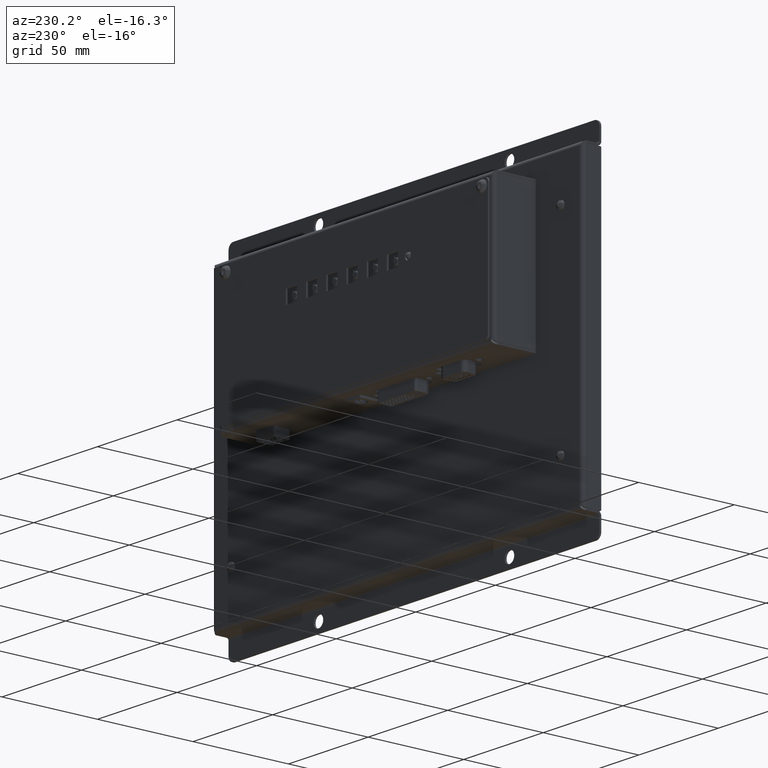
[diagram: clean part render]
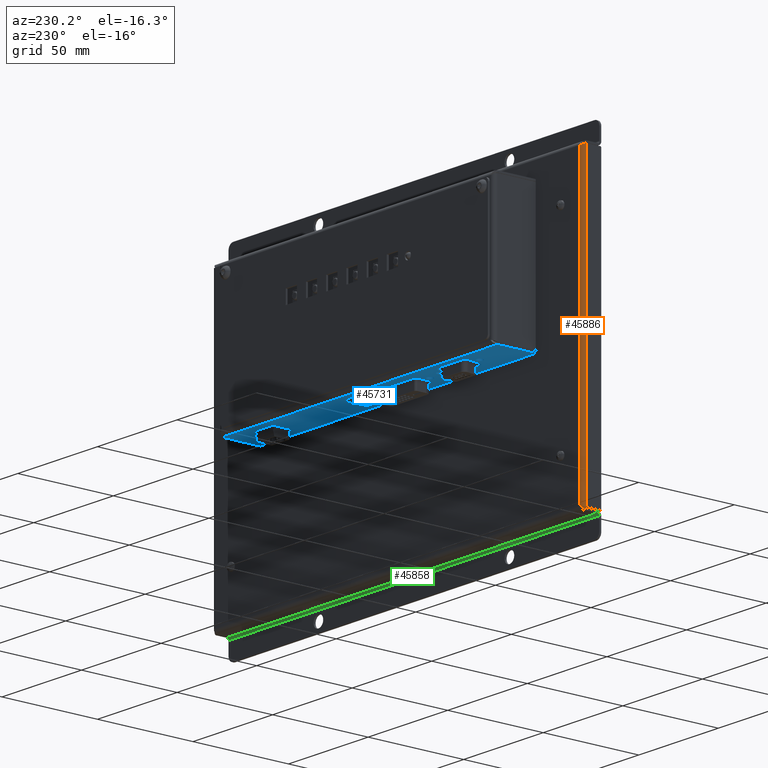
[diagram: same view with three faces highlighted in distinct colors, each labeled with its STEP entity id]
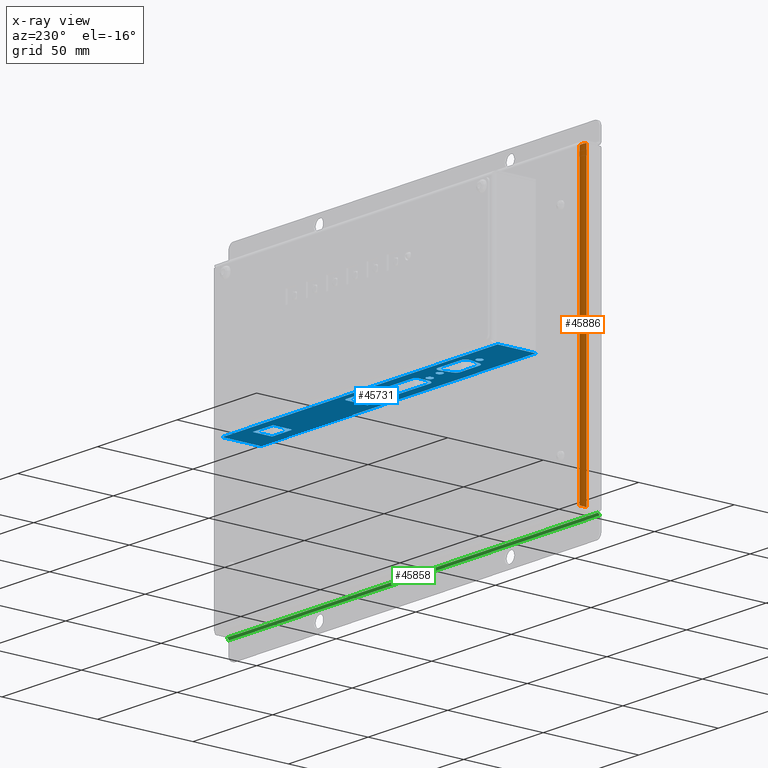
[diagram: x-ray of the same camera — body ghosted, the three highlighted faces saturated]
A machine part, auxiliary view with three faces highlighted in distinct colors.
The next image is the same camera in x-ray (body ghosted, the three faces saturated) — at least one of them is partly hidden behind the body in this view.
Their STEP definitions:

[orange] entity #45886 — the highlighted cylindrical surface (edge-blend (fillet) strip) has radius 2 mm, axis along (0, -0, 1).
#855=CYLINDRICAL_SURFACE('',#49234,2.00000000000001);
#2191=B_SPLINE_CURVE_WITH_KNOTS('',3,(#79556,#79557,#79558,#79559,#79560,
#79561,#79562),.UNSPECIFIED.,.F.,.F.,(4,3,4),(-0.763258696678563,-0.327110870012878,
0.),.UNSPECIFIED.);
#2196=B_SPLINE_CURVE_WITH_KNOTS('',3,(#79666,#79667,#79668,#79669),
 .UNSPECIFIED.,.F.,.F.,(4,4),(-1.,-0.763258696678563),.UNSPECIFIED.);
#2211=B_SPLINE_CURVE_WITH_KNOTS('',3,(#79989,#79990,#79991,#79992),
 .UNSPECIFIED.,.F.,.F.,(4,4),(-1.,-0.763258696678558),.UNSPECIFIED.);
#2213=B_SPLINE_CURVE_WITH_KNOTS('',3,(#80043,#80044,#80045,#80046,#80047,
#80048,#80049),.UNSPECIFIED.,.F.,.F.,(4,3,4),(-0.763258696678558,-0.327110870012873,
0.),.UNSPECIFIED.);
#5913=FACE_OUTER_BOUND('',#8689,.T.);
#8689=EDGE_LOOP('',(#37848,#37849,#37850,#37851,#37852,#37853));
#12446=LINE('',#78990,#16313);
#12609=LINE('',#80052,#16476);
#16313=VECTOR('',#58653,10.);
#16476=VECTOR('',#59242,10.);
#20192=VERTEX_POINT('',#78987);
#20193=VERTEX_POINT('',#78989);
#20379=VERTEX_POINT('',#79542);
#20381=VERTEX_POINT('',#79643);
#20386=VERTEX_POINT('',#79976);
#20387=VERTEX_POINT('',#79987);
#26047=EDGE_CURVE('',#20192,#20193,#12446,.T.);
#26314=EDGE_CURVE('',#20379,#20193,#2191,.T.);
#26323=EDGE_CURVE('',#20381,#20379,#2196,.T.);
#26347=EDGE_CURVE('',#20387,#20386,#2211,.T.);
#26351=EDGE_CURVE('',#20386,#20192,#2213,.T.);
#26352=EDGE_CURVE('',#20381,#20387,#12609,.T.);
#37848=ORIENTED_EDGE('',*,*,#26352,.F.);
#37849=ORIENTED_EDGE('',*,*,#26323,.T.);
#37850=ORIENTED_EDGE('',*,*,#26314,.T.);
#37851=ORIENTED_EDGE('',*,*,#26047,.F.);
#37852=ORIENTED_EDGE('',*,*,#26351,.F.);
#37853=ORIENTED_EDGE('',*,*,#26347,.F.);
#45886=ADVANCED_FACE('',(#5913),#855,.T.);
#49234=AXIS2_PLACEMENT_3D('',#80051,#59240,#59241);
#58653=DIRECTION('',(2.3489649007654E-15,-8.20186098913772E-15,1.));
#59240=DIRECTION('center_axis',(2.23436123370732E-15,-8.20186098913772E-15,
1.));
#59241=DIRECTION('ref_axis',(5.65542498844263E-15,1.,8.2018609891377E-15));
#59242=DIRECTION('',(-2.13833356226729E-15,8.20186098913772E-15,-1.));
#78987=CARTESIAN_POINT('',(-114.5,9.70000000000189,-75.3999999999997));
#78989=CARTESIAN_POINT('',(-114.5,9.70000000000065,75.6000000000003));
#78990=CARTESIAN_POINT('',(-114.5,9.70000000000158,-37.6499999999997));
#79542=CARTESIAN_POINT('',(-116.363297267953,8.42672091701272,76.2869328269985));
#79556=CARTESIAN_POINT('Ctrl Pts',(-116.363297267955,8.42672091701752,76.286932827011));
#79557=CARTESIAN_POINT('Ctrl Pts',(-116.197338578898,8.85223553297524,76.1560884790113));
#79558=CARTESIAN_POINT('Ctrl Pts',(-115.880187355499,9.21691938856584,76.025244131011));
#79559=CARTESIAN_POINT('Ctrl Pts',(-115.483114631716,9.44164274536488,75.8943997830113));
#79560=CARTESIAN_POINT('Ctrl Pts',(-115.185310088866,9.61018526297118,75.7962665220075));
#79561=CARTESIAN_POINT('Ctrl Pts',(-114.842549702047,9.70000000000066,75.698133261004));
#79562=CARTESIAN_POINT('Ctrl Pts',(-114.5,9.70000000000065,75.6000000000002));
#79643=CARTESIAN_POINT('',(-116.5,7.70000000000067,76.5000000000003));
#79666=CARTESIAN_POINT('Ctrl Pts',(-116.5,7.70000000000067,76.5000000000003));
#79667=CARTESIAN_POINT('Ctrl Pts',(-116.5,7.9479149131059,76.4289776090032));
#79668=CARTESIAN_POINT('Ctrl Pts',(-116.452183712013,8.1960704959454,76.3579552180067));
#79669=CARTESIAN_POINT('Ctrl Pts',(-116.362211487759,8.4274026425503,76.2869328270104));
#79976=CARTESIAN_POINT('',(-116.363297267953,8.42672091701397,-76.0869328269979));
#79987=CARTESIAN_POINT('',(-116.5,7.70000000000192,-76.2999999999997));
#79989=CARTESIAN_POINT('Ctrl Pts',(-116.5,7.70000000000192,-76.2999999999997));
#79990=CARTESIAN_POINT('Ctrl Pts',(-116.5,7.94791491310718,-76.2289776090034));
#79991=CARTESIAN_POINT('Ctrl Pts',(-116.452183727048,8.19607051399547,-76.1579552180069));
#79992=CARTESIAN_POINT('Ctrl Pts',(-116.36221151744,8.42740267818207,-76.0869328270103));
#80043=CARTESIAN_POINT('Ctrl Pts',(-116.363297267956,8.42672091701878,-76.0869328270104));
#80044=CARTESIAN_POINT('Ctrl Pts',(-116.197338578898,8.85223553297652,-75.9560884790104));
#80045=CARTESIAN_POINT('Ctrl Pts',(-115.880187364608,9.21691940404167,-75.8252441310103));
#80046=CARTESIAN_POINT('Ctrl Pts',(-115.483114639524,9.44164275863004,-75.694399783011));
#80047=CARTESIAN_POINT('Ctrl Pts',(-115.185310095698,9.61018527457834,-75.5962665220075));
#80048=CARTESIAN_POINT('Ctrl Pts',(-114.842549702048,9.7000000000019,-75.4981332610045));
#80049=CARTESIAN_POINT('Ctrl Pts',(-114.5,9.70000000000189,-75.3999999999997));
#80051=CARTESIAN_POINT('Origin',(-114.5,7.70000000000127,0.100000000000251));
#80052=CARTESIAN_POINT('',(-116.5,7.70000000000129,0.100000000000263));

[blue] entity #45731 — the highlighted planar face has unit normal (-0, 0, -1).
#1488=FACE_BOUND('',#8463,.T.);
#1489=FACE_BOUND('',#8464,.T.);
#1490=FACE_BOUND('',#8465,.T.);
#1491=FACE_BOUND('',#8466,.T.);
#1492=FACE_BOUND('',#8467,.T.);
#1493=FACE_BOUND('',#8468,.T.);
#1494=FACE_BOUND('',#8469,.T.);
#1495=FACE_BOUND('',#8470,.T.);
#3359=CIRCLE('',#48850,1.7);
#3360=CIRCLE('',#48851,1.7);
#3363=CIRCLE('',#48855,1.7);
#3364=CIRCLE('',#48856,1.7);
#3367=CIRCLE('',#48860,1.7);
#3369=CIRCLE('',#48863,1.7);
#3371=CIRCLE('',#48867,2.4);
#3373=CIRCLE('',#48871,2.4);
#3375=CIRCLE('',#48875,2.4);
#3377=CIRCLE('',#48879,2.4);
#3379=CIRCLE('',#48887,1.3);
#3381=CIRCLE('',#48893,1.3);
#3383=CIRCLE('',#48897,1.8);
#3385=CIRCLE('',#48901,1.8);
#3387=CIRCLE('',#48905,1.79999999999992);
#3389=CIRCLE('',#48909,1.8);
#3391=CIRCLE('',#48913,1.80000000000001);
#3393=CIRCLE('',#48917,1.80000000000001);
#5758=FACE_OUTER_BOUND('',#8462,.T.);
#8462=EDGE_LOOP('',(#36902,#36903,#36904,#36905));
#8463=EDGE_LOOP('',(#36906,#36907));
#8464=EDGE_LOOP('',(#36908,#36909));
#8465=EDGE_LOOP('',(#36910));
#8466=EDGE_LOOP('',(#36911));
#8467=EDGE_LOOP('',(#36912,#36913,#36914,#36915,#36916,#36917,#36918,#36919));
#8468=EDGE_LOOP('',(#36920,#36921,#36922,#36923));
#8469=EDGE_LOOP('',(#36924,#36925,#36926,#36927,#36928,#36929));
#8470=EDGE_LOOP('',(#36930,#36931,#36932,#36933,#36934,#36935,#36936,#36937,
#36938,#36939,#36940,#36941));
#12213=LINE('',#77879,#16080);
#12218=LINE('',#77893,#16085);
#12222=LINE('',#77905,#16089);
#12226=LINE('',#77917,#16093);
#12229=LINE('',#77927,#16096);
#12233=LINE('',#77935,#16100);
#12236=LINE('',#77941,#16103);
#12239=LINE('',#77946,#16106);
#12241=LINE('',#77951,#16108);
#12246=LINE('',#77965,#16113);
#12249=LINE('',#77971,#16116);
#12252=LINE('',#77977,#16119);
#12255=LINE('',#77987,#16122);
#12260=LINE('',#78001,#16127);
#12264=LINE('',#78013,#16131);
#12268=LINE('',#78025,#16135);
#12272=LINE('',#78037,#16139);
#12276=LINE('',#78049,#16143);
#12289=LINE('',#78217,#16156);
#12303=LINE('',#78365,#16170);
#12330=LINE('',#78645,#16197);
#12335=LINE('',#78702,#16202);
#16080=VECTOR('',#58108,10.);
#16085=VECTOR('',#58121,10.);
#16089=VECTOR('',#58133,10.);
#16093=VECTOR('',#58145,10.);
#16096=VECTOR('',#58156,10.);
#16100=VECTOR('',#58162,10.);
#16103=VECTOR('',#58167,10.);
#16106=VECTOR('',#58172,10.);
#16108=VECTOR('',#58176,10.);
#16113=VECTOR('',#58189,10.);
#16116=VECTOR('',#58194,10.);
#16119=VECTOR('',#58199,10.);
#16122=VECTOR('',#58210,10.);
#16127=VECTOR('',#58223,10.);
#16131=VECTOR('',#58235,10.);
#16135=VECTOR('',#58247,10.);
#16139=VECTOR('',#58259,10.);
#16143=VECTOR('',#58271,10.);
#16156=VECTOR('',#58298,10.);
#16170=VECTOR('',#58322,10.);
#16197=VECTOR('',#58375,10.);
#16202=VECTOR('',#58388,10.);
#19982=VERTEX_POINT('',#77845);
#19983=VERTEX_POINT('',#77846);
#19986=VERTEX_POINT('',#77855);
#19987=VERTEX_POINT('',#77856);
#19990=VERTEX_POINT('',#77865);
#19992=VERTEX_POINT('',#77871);
#19994=VERTEX_POINT('',#77877);
#19995=VERTEX_POINT('',#77878);
#19998=VERTEX_POINT('',#77886);
#20000=VERTEX_POINT('',#77892);
#20002=VERTEX_POINT('',#77898);
#20004=VERTEX_POINT('',#77904);
#20006=VERTEX_POINT('',#77910);
#20008=VERTEX_POINT('',#77916);
#20010=VERTEX_POINT('',#77925);
#20011=VERTEX_POINT('',#77926);
#20014=VERTEX_POINT('',#77934);
#20016=VERTEX_POINT('',#77940);
#20018=VERTEX_POINT('',#77949);
#20019=VERTEX_POINT('',#77950);
#20022=VERTEX_POINT('',#77958);
#20024=VERTEX_POINT('',#77964);
#20026=VERTEX_POINT('',#77970);
#20028=VERTEX_POINT('',#77976);
#20030=VERTEX_POINT('',#77985);
#20031=VERTEX_POINT('',#77986);
#20034=VERTEX_POINT('',#77994);
#20036=VERTEX_POINT('',#78000);
#20038=VERTEX_POINT('',#78006);
#20040=VERTEX_POINT('',#78012);
#20042=VERTEX_POINT('',#78018);
#20044=VERTEX_POINT('',#78024);
#20046=VERTEX_POINT('',#78030);
#20048=VERTEX_POINT('',#78036);
#20050=VERTEX_POINT('',#78042);
#20052=VERTEX_POINT('',#78048);
#20064=VERTEX_POINT('',#78215);
#20065=VERTEX_POINT('',#78216);
#20080=VERTEX_POINT('',#78363);
#20092=VERTEX_POINT('',#78643);
#25722=EDGE_CURVE('',#19982,#19983,#3359,.T.);
#25723=EDGE_CURVE('',#19983,#19982,#3360,.T.);
#25727=EDGE_CURVE('',#19986,#19987,#3363,.T.);
#25728=EDGE_CURVE('',#19987,#19986,#3364,.T.);
#25732=EDGE_CURVE('',#19990,#19990,#3367,.T.);
#25735=EDGE_CURVE('',#19992,#19992,#3369,.T.);
#25738=EDGE_CURVE('',#19994,#19995,#12213,.T.);
#25742=EDGE_CURVE('',#19998,#19994,#3371,.T.);
#25745=EDGE_CURVE('',#20000,#19998,#12218,.T.);
#25748=EDGE_CURVE('',#20002,#20000,#3373,.T.);
#25751=EDGE_CURVE('',#20004,#20002,#12222,.T.);
#25754=EDGE_CURVE('',#20006,#20004,#3375,.T.);
#25757=EDGE_CURVE('',#20008,#20006,#12226,.T.);
#25760=EDGE_CURVE('',#19995,#20008,#3377,.T.);
#25762=EDGE_CURVE('',#20010,#20011,#12229,.T.);
#25766=EDGE_CURVE('',#20014,#20010,#12233,.T.);
#25769=EDGE_CURVE('',#20016,#20014,#12236,.T.);
#25772=EDGE_CURVE('',#20011,#20016,#12239,.T.);
#25774=EDGE_CURVE('',#20018,#20019,#12241,.T.);
#25778=EDGE_CURVE('',#20022,#20018,#3379,.T.);
#25781=EDGE_CURVE('',#20024,#20022,#12246,.T.);
#25784=EDGE_CURVE('',#20026,#20024,#12249,.T.);
#25787=EDGE_CURVE('',#20028,#20026,#12252,.T.);
#25790=EDGE_CURVE('',#20019,#20028,#3381,.T.);
#25792=EDGE_CURVE('',#20030,#20031,#12255,.T.);
#25796=EDGE_CURVE('',#20034,#20030,#3383,.T.);
#25799=EDGE_CURVE('',#20036,#20034,#12260,.T.);
#25802=EDGE_CURVE('',#20038,#20036,#3385,.T.);
#25805=EDGE_CURVE('',#20040,#20038,#12264,.T.);
#25808=EDGE_CURVE('',#20042,#20040,#3387,.T.);
#25811=EDGE_CURVE('',#20044,#20042,#12268,.T.);
#25814=EDGE_CURVE('',#20046,#20044,#3389,.T.);
#25817=EDGE_CURVE('',#20048,#20046,#12272,.T.);
#25820=EDGE_CURVE('',#20050,#20048,#3391,.T.);
#25823=EDGE_CURVE('',#20052,#20050,#12276,.T.);
#25826=EDGE_CURVE('',#20031,#20052,#3393,.T.);
#25843=EDGE_CURVE('',#20064,#20065,#12289,.T.);
#25864=EDGE_CURVE('',#20080,#20064,#12303,.T.);
#25902=EDGE_CURVE('',#20092,#20065,#12330,.T.);
#25908=EDGE_CURVE('',#20080,#20092,#12335,.T.);
#36902=ORIENTED_EDGE('',*,*,#25908,.T.);
#36903=ORIENTED_EDGE('',*,*,#25902,.T.);
#36904=ORIENTED_EDGE('',*,*,#25843,.F.);
#36905=ORIENTED_EDGE('',*,*,#25864,.F.);
#36906=ORIENTED_EDGE('',*,*,#25722,.T.);
#36907=ORIENTED_EDGE('',*,*,#25723,.T.);
#36908=ORIENTED_EDGE('',*,*,#25727,.T.);
#36909=ORIENTED_EDGE('',*,*,#25728,.T.);
#36910=ORIENTED_EDGE('',*,*,#25732,.T.);
#36911=ORIENTED_EDGE('',*,*,#25735,.T.);
#36912=ORIENTED_EDGE('',*,*,#25738,.T.);
#36913=ORIENTED_EDGE('',*,*,#25760,.T.);
#36914=ORIENTED_EDGE('',*,*,#25757,.T.);
#36915=ORIENTED_EDGE('',*,*,#25754,.T.);
#36916=ORIENTED_EDGE('',*,*,#25751,.T.);
#36917=ORIENTED_EDGE('',*,*,#25748,.T.);
#36918=ORIENTED_EDGE('',*,*,#25745,.T.);
#36919=ORIENTED_EDGE('',*,*,#25742,.T.);
#36920=ORIENTED_EDGE('',*,*,#25762,.T.);
#36921=ORIENTED_EDGE('',*,*,#25772,.T.);
#36922=ORIENTED_EDGE('',*,*,#25769,.T.);
#36923=ORIENTED_EDGE('',*,*,#25766,.T.);
#36924=ORIENTED_EDGE('',*,*,#25774,.T.);
#36925=ORIENTED_EDGE('',*,*,#25790,.T.);
#36926=ORIENTED_EDGE('',*,*,#25787,.T.);
#36927=ORIENTED_EDGE('',*,*,#25784,.T.);
#36928=ORIENTED_EDGE('',*,*,#25781,.T.);
#36929=ORIENTED_EDGE('',*,*,#25778,.T.);
#36930=ORIENTED_EDGE('',*,*,#25792,.T.);
#36931=ORIENTED_EDGE('',*,*,#25826,.T.);
#36932=ORIENTED_EDGE('',*,*,#25823,.T.);
#36933=ORIENTED_EDGE('',*,*,#25820,.T.);
#36934=ORIENTED_EDGE('',*,*,#25817,.T.);
#36935=ORIENTED_EDGE('',*,*,#25814,.T.);
#36936=ORIENTED_EDGE('',*,*,#25811,.T.);
#36937=ORIENTED_EDGE('',*,*,#25808,.T.);
#36938=ORIENTED_EDGE('',*,*,#25805,.T.);
#36939=ORIENTED_EDGE('',*,*,#25802,.T.);
#36940=ORIENTED_EDGE('',*,*,#25799,.T.);
#36941=ORIENTED_EDGE('',*,*,#25796,.T.);
#41119=PLANE('',#48945);
#45731=ADVANCED_FACE('',(#5758,#1488,#1489,#1490,#1491,#1492,#1493,#1494,
#1495),#41119,.T.);
#48850=AXIS2_PLACEMENT_3D('',#77847,#58072,#58073);
#48851=AXIS2_PLACEMENT_3D('',#77848,#58074,#58075);
#48855=AXIS2_PLACEMENT_3D('',#77857,#58083,#58084);
#48856=AXIS2_PLACEMENT_3D('',#77858,#58085,#58086);
#48860=AXIS2_PLACEMENT_3D('',#77866,#58094,#58095);
#48863=AXIS2_PLACEMENT_3D('',#77872,#58101,#58102);
#48867=AXIS2_PLACEMENT_3D('',#77887,#58114,#58115);
#48871=AXIS2_PLACEMENT_3D('',#77899,#58126,#58127);
#48875=AXIS2_PLACEMENT_3D('',#77911,#58138,#58139);
#48879=AXIS2_PLACEMENT_3D('',#77922,#58150,#58151);
#48887=AXIS2_PLACEMENT_3D('',#77959,#58182,#58183);
#48893=AXIS2_PLACEMENT_3D('',#77982,#58204,#58205);
#48897=AXIS2_PLACEMENT_3D('',#77995,#58216,#58217);
#48901=AXIS2_PLACEMENT_3D('',#78007,#58228,#58229);
#48905=AXIS2_PLACEMENT_3D('',#78019,#58240,#58241);
#48909=AXIS2_PLACEMENT_3D('',#78031,#58252,#58253);
#48913=AXIS2_PLACEMENT_3D('',#78043,#58264,#58265);
#48917=AXIS2_PLACEMENT_3D('',#78054,#58276,#58277);
#48945=AXIS2_PLACEMENT_3D('',#78703,#58389,#58390);
#58072=DIRECTION('center_axis',(7.40398292433168E-15,-7.51784568580419E-15,
1.));
#58073=DIRECTION('ref_axis',(-1.,4.31251229418885E-15,7.40398292433171E-15));
#58074=DIRECTION('center_axis',(7.40398292433168E-15,-7.51784568580419E-15,
1.));
#58075=DIRECTION('ref_axis',(-1.,4.31251229418885E-15,7.40398292433171E-15));
#58083=DIRECTION('center_axis',(7.40398292433168E-15,-7.51784568580419E-15,
1.));
#58084=DIRECTION('ref_axis',(-1.,4.31251229418885E-15,7.40398292433171E-15));
#58085=DIRECTION('center_axis',(7.40398292433168E-15,-7.51784568580419E-15,
1.));
#58086=DIRECTION('ref_axis',(-1.,4.31251229418885E-15,7.40398292433171E-15));
#58094=DIRECTION('center_axis',(7.40398292433168E-15,-7.51784568580419E-15,
1.));
#58095=DIRECTION('ref_axis',(1.,-4.31251229418885E-15,-7.29971638691036E-15));
#58101=DIRECTION('center_axis',(7.40398292433168E-15,-7.51784568580419E-15,
1.));
#58102=DIRECTION('ref_axis',(1.,-4.31251229418885E-15,-7.29971638691036E-15));
#58108=DIRECTION('',(0.195316901016822,0.980740183829125,5.92693035993267E-15));
#58114=DIRECTION('center_axis',(7.40398292433168E-15,-7.51784568580419E-15,
1.));
#58115=DIRECTION('ref_axis',(-0.980740183829125,0.195316901016822,8.5439670894965E-15));
#58121=DIRECTION('',(1.,-3.94526718198739E-15,-7.40398292433171E-15));
#58126=DIRECTION('center_axis',(7.40398292433168E-15,-7.51784568580419E-15,
1.));
#58127=DIRECTION('ref_axis',(4.3125122941889E-15,1.,7.09023075365257E-15));
#58133=DIRECTION('',(0.195316901016813,-0.980740183829126,-8.81917635985647E-15));
#58138=DIRECTION('center_axis',(7.40398292433168E-15,-7.51784568580419E-15,
1.));
#58139=DIRECTION('ref_axis',(0.980740183829126,0.195316901016815,-5.77428329290138E-15));
#58145=DIRECTION('',(-1.,4.00502339965916E-15,7.40398292433171E-15));
#58150=DIRECTION('center_axis',(7.40398292433168E-15,-7.51784568580419E-15,
1.));
#58151=DIRECTION('ref_axis',(-4.3125122941889E-15,-1.,-7.09023075365257E-15));
#58156=DIRECTION('',(-1.,-1.67916752126095E-15,7.40398292433167E-15));
#58162=DIRECTION('',(4.31251229418891E-15,1.,7.51784568580416E-15));
#58167=DIRECTION('',(1.,1.85539339818594E-15,-7.40398292433167E-15));
#58172=DIRECTION('',(-4.31251229418891E-15,-1.,-7.51784568580416E-15));
#58176=DIRECTION('',(-1.,4.31251229418885E-15,7.40398292433171E-15));
#58182=DIRECTION('center_axis',(7.40398292433168E-15,-7.51784568580419E-15,
1.));
#58183=DIRECTION('ref_axis',(4.31251229418891E-15,1.,7.09023075365257E-15));
#58189=DIRECTION('',(5.11994722118902E-15,1.,7.51784568580416E-15));
#58194=DIRECTION('',(1.,-4.31251229418885E-15,-7.40398292433171E-15));
#58199=DIRECTION('',(-4.31251229418891E-15,-1.,-7.51784568580416E-15));
#58204=DIRECTION('center_axis',(7.40398292433168E-15,-7.51784568580419E-15,
1.));
#58205=DIRECTION('ref_axis',(-1.,4.31251229418885E-15,7.29971638691036E-15));
#58210=DIRECTION('',(7.75244301299067E-15,1.,7.51784568580414E-15));
#58216=DIRECTION('center_axis',(7.40398292433168E-15,-7.51784568580419E-15,
1.));
#58217=DIRECTION('ref_axis',(1.,-4.31251229418885E-15,-7.29971638691036E-15));
#58223=DIRECTION('',(0.447213595499987,0.894427190999901,3.41300377451369E-15));
#58228=DIRECTION('center_axis',(7.40398292433168E-15,-7.51784568580419E-15,
1.));
#58229=DIRECTION('ref_axis',(0.894427190999902,-0.447213595499985,-9.69991241130571E-15));
#58235=DIRECTION('',(1.,-4.31251229418885E-15,-7.40398292433171E-15));
#58240=DIRECTION('center_axis',(7.40398292433168E-15,-7.51784568580419E-15,
1.));
#58241=DIRECTION('ref_axis',(-4.31251229418891E-15,-1.,-7.09023075365257E-15));
#58247=DIRECTION('',(0.447213595499956,-0.894427190999917,-1.00353274237353E-14));
#58252=DIRECTION('center_axis',(7.40398292433168E-15,-7.51784568580419E-15,
1.));
#58253=DIRECTION('ref_axis',(-0.894427190999914,-0.447213595499962,3.35821723477486E-15));
#58259=DIRECTION('',(-7.75244301299068E-15,-1.,-7.51784568580414E-15));
#58264=DIRECTION('center_axis',(7.40398292433168E-15,-7.51784568580419E-15,
1.));
#58265=DIRECTION('ref_axis',(-1.,4.31251229418885E-15,7.29971638691036E-15));
#58271=DIRECTION('',(-1.,4.41150676807429E-15,7.40398292433171E-15));
#58276=DIRECTION('center_axis',(7.40398292433168E-15,-7.51784568580419E-15,
1.));
#58277=DIRECTION('ref_axis',(4.3125122941889E-15,1.,7.09023075365257E-15));
#58298=DIRECTION('',(1.,1.90473664371202E-15,-7.29971638691032E-15));
#58322=DIRECTION('',(3.68109348311222E-15,-1.,-7.53431996350269E-15));
#58375=DIRECTION('',(-6.08886913358916E-15,-1.,-7.53431996350262E-15));
#58388=DIRECTION('',(1.,1.90473664371202E-15,-7.40398292433167E-15));
#58389=DIRECTION('center_axis',(-7.40398292433168E-15,7.51784568580419E-15,
-1.));
#58390=DIRECTION('ref_axis',(-1.,-2.00861716063602E-15,7.40398292433167E-15));
#77845=CARTESIAN_POINT('',(-34.175000000002,19.8,-5.40000000000139));
#77846=CARTESIAN_POINT('',(-30.775000000002,19.8,-5.40000000000141));
#77847=CARTESIAN_POINT('Origin',(-32.475000000002,19.8,-5.4000000000014));
#77848=CARTESIAN_POINT('Origin',(-32.475000000002,19.8,-5.4000000000014));
#77855=CARTESIAN_POINT('',(-1.72500000000184,19.7999999999998,-5.40000000000163));
#77856=CARTESIAN_POINT('',(1.67499999999816,19.7999999999998,-5.40000000000166));
#77857=CARTESIAN_POINT('Origin',(-0.0250000000018375,19.7999999999998,-5.40000000000164));
#77858=CARTESIAN_POINT('Origin',(-0.0250000000018375,19.7999999999998,-5.40000000000164));
#77865=CARTESIAN_POINT('',(-67.175000000002,21.1999999999994,-5.40000000000113));
#77866=CARTESIAN_POINT('Origin',(-65.475000000002,21.1999999999994,-5.40000000000115));
#77871=CARTESIAN_POINT('',(-42.175000000002,21.1999999999993,-5.40000000000131));
#77872=CARTESIAN_POINT('Origin',(-40.475000000002,21.1999999999993,-5.40000000000133));
#77877=CARTESIAN_POINT('',(-44.575000000002,17.7812394375587,-5.40000000000133));
#77878=CARTESIAN_POINT('',(-43.400000000002,23.6812394375587,-5.40000000000129));
#77879=CARTESIAN_POINT('',(-43.4422021102213,23.4693309692235,-5.40000000000129));
#77886=CARTESIAN_POINT('',(-46.9287764411919,15.8499999999991,-5.40000000000132));
#77887=CARTESIAN_POINT('Origin',(-46.9287764411919,18.249999999999,-5.40000000000131));
#77892=CARTESIAN_POINT('',(-59.0212235588121,15.8499999999991,-5.40000000000123));
#77893=CARTESIAN_POINT('',(-29.760611779407,15.849999999999,-5.40000000000145));
#77898=CARTESIAN_POINT('',(-61.375000000002,17.7812394375587,-5.4000000000012));
#77899=CARTESIAN_POINT('Origin',(-59.0212235588121,18.2499999999991,-5.40000000000122));
#77904=CARTESIAN_POINT('',(-62.550000000002,23.6812394375588,-5.40000000000115));
#77905=CARTESIAN_POINT('',(-61.0934452863806,16.3674753436299,-5.40000000000121));
#77910=CARTESIAN_POINT('',(-60.1962235588121,26.5499999999991,-5.40000000000115));
#77911=CARTESIAN_POINT('Origin',(-60.1962235588121,24.1499999999991,-5.40000000000117));
#77916=CARTESIAN_POINT('',(-45.7537764411919,26.549999999999,-5.40000000000125));
#77917=CARTESIAN_POINT('',(-23.1268882205969,26.549999999999,-5.40000000000142));
#77922=CARTESIAN_POINT('Origin',(-45.7537764411919,24.149999999999,-5.40000000000128));
#77925=CARTESIAN_POINT('',(72.3999999999956,25.0000000000467,-5.40000000000214));
#77926=CARTESIAN_POINT('',(59.8000000000218,25.0000000000467,-5.40000000000205));
#77927=CARTESIAN_POINT('',(35.9499999999969,25.0000000000466,-5.40000000000187));
#77934=CARTESIAN_POINT('',(72.3999999999956,14.9000000000001,-5.40000000000222));
#77935=CARTESIAN_POINT('',(72.3999999999956,17.865486677646,-5.40000000000219));
#77940=CARTESIAN_POINT('',(59.8000000000218,14.9,-5.40000000000212));
#77941=CARTESIAN_POINT('',(29.6500000000099,14.9,-5.4000000000019));
#77946=CARTESIAN_POINT('',(59.8000000000218,22.9154866776693,-5.40000000000206));
#77949=CARTESIAN_POINT('',(12.199999999998,26.3999999999999,-5.40000000000168));
#77950=CARTESIAN_POINT('',(4.79999999999802,26.3999999999999,-5.40000000000163));
#77951=CARTESIAN_POINT('',(5.84999999999807,26.3999999999999,-5.40000000000163));
#77958=CARTESIAN_POINT('',(13.499999999998,25.0999999999999,-5.40000000000171));
#77959=CARTESIAN_POINT('Origin',(12.199999999998,25.0999999999999,-5.40000000000169));
#77964=CARTESIAN_POINT('',(13.499999999998,14.0999999999999,-5.40000000000179));
#77965=CARTESIAN_POINT('',(13.499999999998,17.465486677646,-5.40000000000176));
#77970=CARTESIAN_POINT('',(3.49999999999799,14.0999999999999,-5.40000000000171));
#77971=CARTESIAN_POINT('',(1.49999999999802,14.0999999999999,-5.40000000000169));
#77976=CARTESIAN_POINT('',(3.49999999999802,25.0999999999999,-5.40000000000163));
#77977=CARTESIAN_POINT('',(3.49999999999803,22.9654866776461,-5.40000000000164));
#77982=CARTESIAN_POINT('Origin',(4.79999999999801,25.0999999999999,-5.40000000000164));
#77985=CARTESIAN_POINT('',(-3.23500000000203,17.7360679774997,-5.40000000000163));
#77986=CARTESIAN_POINT('',(-3.23500000000198,22.8999999999999,-5.40000000000159));
#77987=CARTESIAN_POINT('',(-3.23500000000201,19.283520666396,-5.40000000000162));
#77994=CARTESIAN_POINT('',(-3.42503105620218,16.9310835055998,-5.40000000000164));
#77995=CARTESIAN_POINT('Origin',(-5.03500000000201,17.7360679774997,-5.40000000000162));
#78000=CARTESIAN_POINT('',(-4.04306504495214,15.6950155280999,-5.40000000000164));
#78001=CARTESIAN_POINT('',(-2.66156697501855,18.4580116679669,-5.40000000000163));
#78006=CARTESIAN_POINT('',(-5.65303398875196,14.6999999999999,-5.40000000000164));
#78007=CARTESIAN_POINT('Origin',(-5.65303398875197,16.4999999999999,-5.40000000000163));
#78012=CARTESIAN_POINT('',(-26.8469660112521,14.7,-5.40000000000148));
#78013=CARTESIAN_POINT('',(-13.673483005627,14.7,-5.40000000000158));
#78018=CARTESIAN_POINT('',(-28.456934955052,15.6950155281001,-5.40000000000147));
#78019=CARTESIAN_POINT('Origin',(-26.8469660112521,16.5,-5.40000000000147));
#78024=CARTESIAN_POINT('',(-29.0749689438018,16.9310835055999,-5.40000000000145));
#78025=CARTESIAN_POINT('',(-26.9974500193604,12.7760456567169,-5.40000000000149));
#78030=CARTESIAN_POINT('',(-29.265000000002,17.7360679774998,-5.40000000000144));
#78031=CARTESIAN_POINT('Origin',(-27.465000000002,17.7360679774998,-5.40000000000145));
#78036=CARTESIAN_POINT('',(-29.265000000002,22.9,-5.4000000000014));
#78037=CARTESIAN_POINT('',(-29.265000000002,21.8654866776462,-5.40000000000141));
#78042=CARTESIAN_POINT('',(-27.465000000002,24.7,-5.4000000000014));
#78043=CARTESIAN_POINT('Origin',(-27.465000000002,22.9,-5.40000000000142));
#78048=CARTESIAN_POINT('',(-5.03500000000198,24.6999999999999,-5.40000000000157));
#78049=CARTESIAN_POINT('',(-2.76750000000194,24.6999999999999,-5.40000000000159));
#78054=CARTESIAN_POINT('Origin',(-5.03500000000198,22.8999999999999,-5.40000000000158));
#78215=CARTESIAN_POINT('',(-87.0000000000019,9.69999999999976,-5.40000000000108));
#78216=CARTESIAN_POINT('',(85.999999999998,9.7000000000001,-5.40000000000235));
#78217=CARTESIAN_POINT('',(-458.27654609843,9.69999999999906,-5.39999999999837));
#78363=CARTESIAN_POINT('',(-87.0000000000019,29.6999999999998,-5.40000000000092));
#78365=CARTESIAN_POINT('',(-87.0000000000019,29.6999999999998,-5.40000000000092));
#78643=CARTESIAN_POINT('',(85.999999999998,29.7000000000001,-5.4000000000022));
#78645=CARTESIAN_POINT('',(85.9999999999981,29.7000000000001,-5.4000000000022));
#78702=CARTESIAN_POINT('',(-0.500000000001927,29.6999999999999,-5.40000000000156));
#78703=CARTESIAN_POINT('Origin',(-0.500000000001914,20.8309733552923,-5.40000000000163));

[green] entity #45858 — the highlighted cylindrical surface (edge-blend (fillet) strip) has radius 1 mm, axis along (1, -0, -0).
#849=CYLINDRICAL_SURFACE('',#49218,0.999999999999995);
#3539=CIRCLE('',#49214,0.99999999999997);
#3540=CIRCLE('',#49216,1.00000000000004);
#5885=FACE_OUTER_BOUND('',#8661,.T.);
#8661=EDGE_LOOP('',(#37736,#37737,#37738,#37739));
#12558=LINE('',#79410,#16425);
#12585=LINE('',#79507,#16452);
#16425=VECTOR('',#59075,10.);
#16452=VECTOR('',#59186,10.);
#20345=VERTEX_POINT('',#79407);
#20346=VERTEX_POINT('',#79409);
#20373=VERTEX_POINT('',#79498);
#20374=VERTEX_POINT('',#79502);
#26255=EDGE_CURVE('',#20345,#20346,#12558,.T.);
#26300=EDGE_CURVE('',#20346,#20373,#3539,.T.);
#26303=EDGE_CURVE('',#20345,#20374,#3540,.T.);
#26304=EDGE_CURVE('',#20373,#20374,#12585,.T.);
#37736=ORIENTED_EDGE('',*,*,#26255,.F.);
#37737=ORIENTED_EDGE('',*,*,#26303,.T.);
#37738=ORIENTED_EDGE('',*,*,#26304,.F.);
#37739=ORIENTED_EDGE('',*,*,#26300,.F.);
#45858=ADVANCED_FACE('',(#5885),#849,.F.);
#49214=AXIS2_PLACEMENT_3D('',#79499,#59174,#59175);
#49216=AXIS2_PLACEMENT_3D('',#79504,#59180,#59181);
#49218=AXIS2_PLACEMENT_3D('',#79506,#59184,#59185);
#59075=DIRECTION('',(1.,-5.15229450958321E-15,-2.07275007412302E-15));
#59174=DIRECTION('center_axis',(-1.,5.43339641897957E-15,2.07275007412302E-15));
#59175=DIRECTION('ref_axis',(-5.65542498844263E-15,-1.,-8.2018609891377E-15));
#59180=DIRECTION('center_axis',(-1.,5.43339641897957E-15,2.07275007412302E-15));
#59181=DIRECTION('ref_axis',(-5.65542498844263E-15,-1.,-8.20186098913771E-15));
#59184=DIRECTION('center_axis',(1.,-5.43339641897957E-15,-2.07275007412302E-15));
#59185=DIRECTION('ref_axis',(2.07275007412299E-15,-5.94413642473889E-15,
1.));
#59186=DIRECTION('',(-1.,5.43623932692864E-15,2.07275007412302E-15));
#79407=CARTESIAN_POINT('',(-116.5,1.00000000000177,-78.3999999999998));
#79409=CARTESIAN_POINT('',(116.5,1.00000000000058,-78.4000000000002));
#79410=CARTESIAN_POINT('',(-2.79175834122928E-13,1.00000000000119,-78.4));
#79498=CARTESIAN_POINT('',(116.5,2.00000000000059,-77.4000000000002));
#79499=CARTESIAN_POINT('Origin',(116.5,2.00000000000054,-78.4000000000002));
#79502=CARTESIAN_POINT('',(-116.5,2.00000000000186,-77.3999999999997));
#79504=CARTESIAN_POINT('Origin',(-116.5,2.00000000000181,-78.3999999999998));
#79506=CARTESIAN_POINT('Origin',(-2.72128737988751E-13,2.00000000000117,
-78.4));
#79507=CARTESIAN_POINT('',(-58.2500000000003,2.00000000000154,-77.3999999999999));